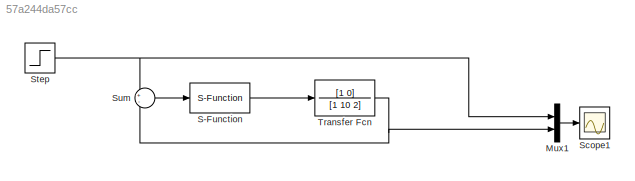
MODEL slx_57a244da57cc
KIND model
BLOCK [Mux] Mux1
  DisplayOption = bar
  Inputs = 2
  Ports = [2, 1]
BLOCK [S-Function] S-Function
  EnableBusSupport = off
  FunctionName = pi
  Parameters = 0.0001,1,1
  Ports = [1, 1]
BLOCK [Scope] Scope1
  DataFormat = StructureWithTime
  Floating = off
  LimitDataPoints = off
  NumInputPorts = 1
  Ports = [1]
  SampleTime = 0
  SaveName = ScopeData1
  ShowLegends = off
  YMax = 1.5
  YMin = 0.4
BLOCK [Step] Step
  SampleTime = 0
  Time = 3
BLOCK [Sum] Sum
  IconShape = round
  InputSameDT = off
  Inputs = +-
  OutDataTypeStr = Inherit: Inherit via internal rule
  Ports = [2, 1]
  SaturateOnIntegerOverflow = off
BLOCK [TransferFcn] Transfer Fcn
  Denominator = [1 10 2]
  Numerator = [1 0]
LINE Mux1:1 -> Scope1:1
LINE S-Function:1 -> Transfer Fcn:1
NET Step:1 -> Mux1:1, Sum:1
LINE Sum:1 -> S-Function:1
NET Transfer Fcn:1 -> Mux1:2, Sum:2
note: NET lines group one-source signal fan-out (src -> all destinations, sorted); 1:1 wires keep LINE
